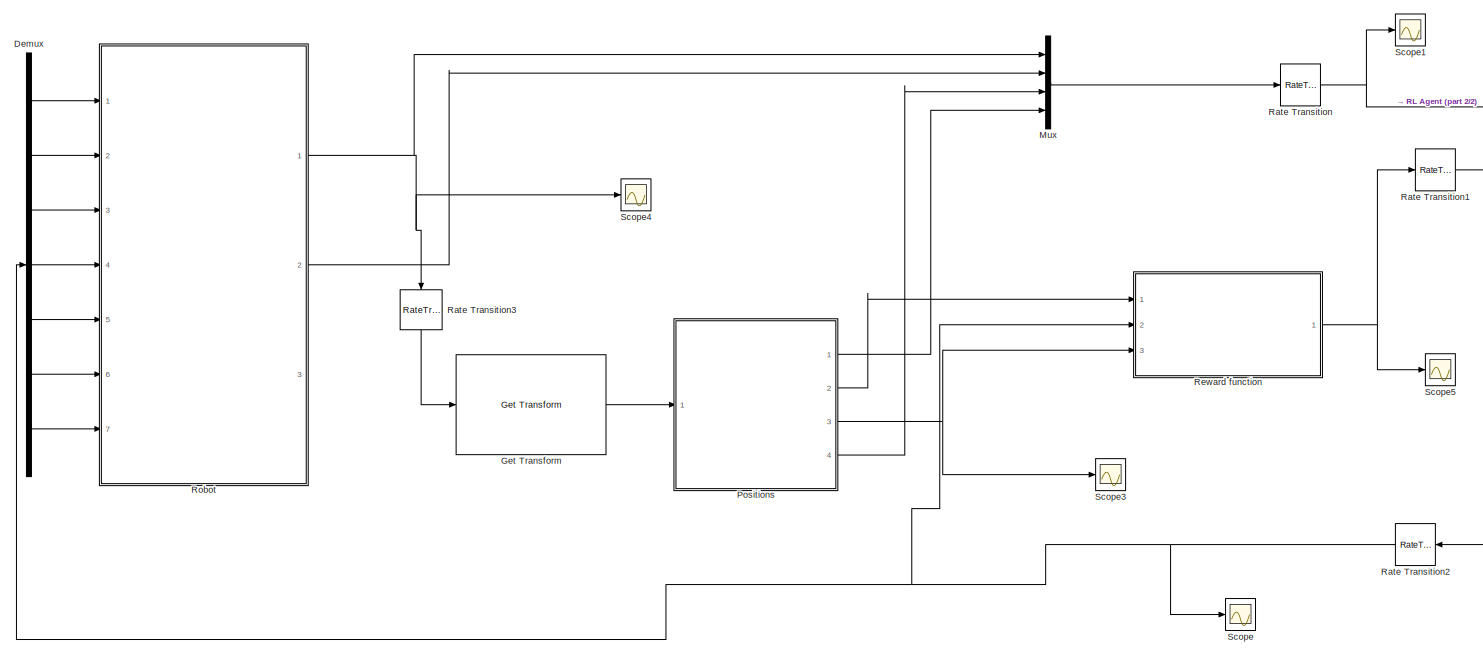
[diagram: root canvas - part 1/2, most of the canvas]
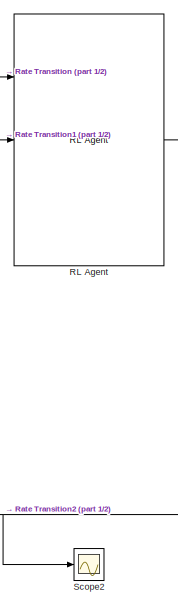
[diagram: root canvas - part 2/2, right side, full height]
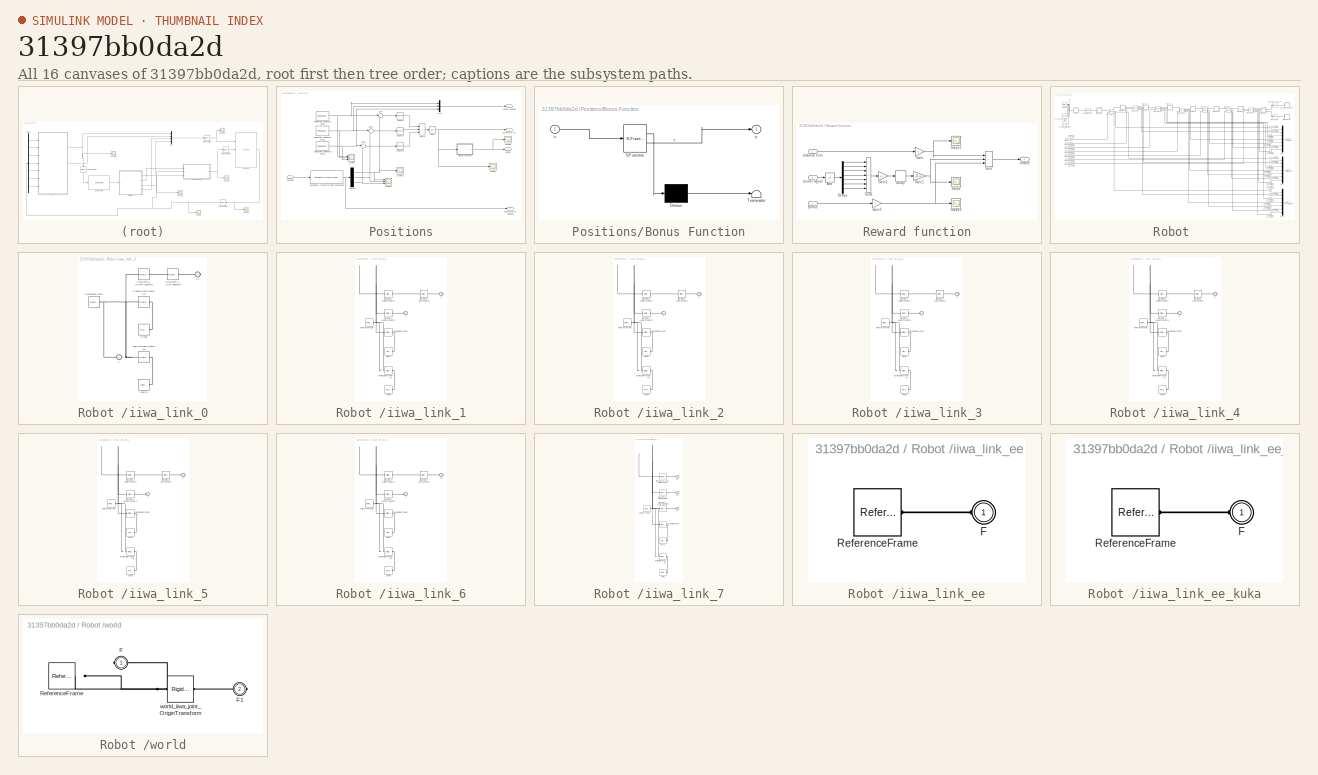
[diagram: thumbnail index - all 16 canvases of the model, root first then tree order]
MODEL slx_31397bb0da2d
KIND model
CONFIG AbsTol = auto
CONFIG EnableMultiTasking = off
CONFIG FixedStep = 1e-3
CONFIG MaxStep = auto
CONFIG MinStep = 1e-3
CONFIG RelTol = 1e-3
CONFIG SampleTimeConstraint = Unconstrained
CONFIG SolverName = VariableStepAuto
CONFIG StartTime = 0.0
CONFIG StopTime = 50
BLOCK [Demux] Demux
  Outputs = 7
  Ports = [1, 7]
BLOCK [Reference] Get Transform  REF=robotmaniplib/Get Transform
  Ports = [1, 1]
  SourceBlock = robotmaniplib/Get Transform
  SourceProductBaseCode = RO
  SourceType = Get Transform
BLOCK [Mux] Mux
  DisplayOption = bar
  Ports = [4, 1]
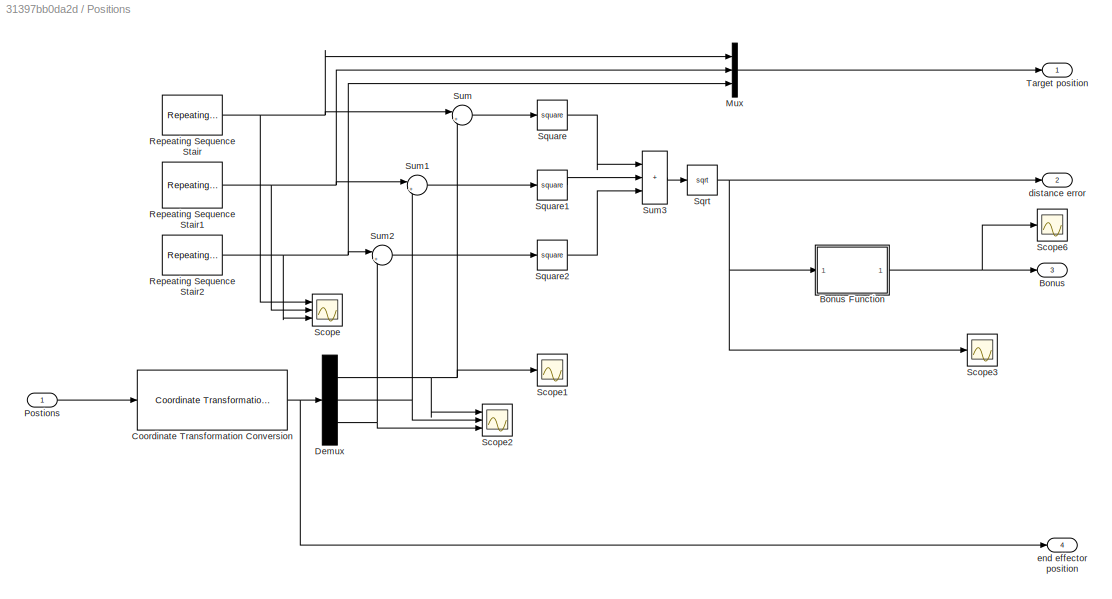
BLOCK [SubSystem] Positions
  Ports = [1, 4]
  RequestExecContextInheritance = off
BLOCK [Outport] Positions/Bonus
  Port = 3
BLOCK [SubSystem] Positions/Bonus Function
  ErrorFcn = Stateflow.Translate.translate
  PermitHierarchicalResolution = ExplicitOnly
  Ports = [1, 1]
  RequestExecContextInheritance = off
  SFBlockType = MATLAB Function
  TreatAsAtomicUnit = on
BLOCK [Demux] Positions/Bonus Function/ Demux 
  Outputs = 1
  Ports = [1, 1]
BLOCK [S-Function] Positions/Bonus Function/ SFunction 
  EnableBusSupport = on
  FunctionName = sf_sfun
  PortCounts = [1 2]
  Ports = [1, 2]
  SFcnIsStateOwnerBlock = off
  SFunctionDeploymentMode = off
  Tag = Stateflow S-Function 2
BLOCK [Terminator] Positions/Bonus Function/ Terminator 
BLOCK [Inport] Positions/Bonus Function/u
BLOCK [Outport] Positions/Bonus Function/y
BLOCK [Reference] Positions/Coordinate Transformation Conversion  REF=robotcorelib/Coordinate Transformation Conversion
  Ports = [1, 1]
  SourceBlock = robotcorelib/Coordinate Transformation Conversion
  SourceProductBaseCode = NV,RO,RR,UV
  SourceType = robotics.slcore.internal.block.CoordinateTransformationConversion
BLOCK [Demux] Positions/Demux
  Outputs = 3
  Ports = [1, 3]
BLOCK [Mux] Positions/Mux
  DisplayOption = bar
  Inputs = 3
  Ports = [3, 1]
BLOCK [Inport] Positions/Postions
BLOCK [Reference] Positions/Repeating Sequence Stair  REF=simulink/Sources/Repeating
Sequence
Stair
  Ports = [0, 1]
  SourceBlock = simulink/Sources/Repeating\nSequence\nStair
  SourceProductBaseCode = SL
  SourceType = Repeating Sequence Stair
BLOCK [Reference] Positions/Repeating Sequence Stair1  REF=simulink/Sources/Repeating
Sequence
Stair
  Ports = [0, 1]
  SourceBlock = simulink/Sources/Repeating\nSequence\nStair
  SourceProductBaseCode = SL
  SourceType = Repeating Sequence Stair
BLOCK [Reference] Positions/Repeating Sequence Stair2  REF=simulink/Sources/Repeating
Sequence
Stair
  Ports = [0, 1]
  SourceBlock = simulink/Sources/Repeating\nSequence\nStair
  SourceProductBaseCode = SL
  SourceType = Repeating Sequence Stair
BLOCK [Scope] Positions/Scope
  Floating = off
  NumInputPorts = 3
  Ports = [3]
  ScopeSpecificationString = Simulink.scopes.TimeScopeBlockCfg('CurrentConfiguration', extmgr.ConfigurationSet(extmgr.Configuration('Core','General UI',true),extmgr.Configuration('Core','Source UI',true),extmgr.Configuration('Sources','WiredSimulink',true,'DataLoggingVariableName','ScopeData8'),extmgr.Configuration('Visuals','Time Domain',true,'SerializedDisplays',{struct('MinYLimReal','-1.20969','MaxYLimReal','1.42979','YLab...<+1602ch>
BLOCK [Scope] Positions/Scope1
  Floating = off
  NumInputPorts = 1
  Ports = [1]
  ScopeSpecificationString = Simulink.scopes.TimeScopeBlockCfg('CurrentConfiguration', extmgr.ConfigurationSet(extmgr.Configuration('Core','General UI',true),extmgr.Configuration('Core','Source UI',true),extmgr.Configuration('Sources','WiredSimulink',true,'DataLoggingVariableName','ScopeData5'),extmgr.Configuration('Visuals','Time Domain',true,'SerializedDisplays',{struct('MinYLimReal','-0.13897','MaxYLimReal','0.61525','YLab...<+1364ch>
BLOCK [Scope] Positions/Scope2
  Floating = off
  NumInputPorts = 3
  Ports = [3]
  ScopeSpecificationString = Simulink.scopes.TimeScopeBlockCfg('CurrentConfiguration', extmgr.ConfigurationSet(extmgr.Configuration('Core','General UI',true),extmgr.Configuration('Core','Source UI',true),extmgr.Configuration('Sources','WiredSimulink',true,'DataLoggingVariableName','ScopeData9'),extmgr.Configuration('Visuals','Time Domain',true,'SerializedDisplays',{struct('MinYLimReal','-0.26658','MaxYLimReal','1.48073','YLab...<+1550ch>
BLOCK [Scope] Positions/Scope3
  Floating = off
  NumInputPorts = 1
  Ports = [1]
  ScopeSpecificationString = Simulink.scopes.TimeScopeBlockCfg('CurrentConfiguration', extmgr.ConfigurationSet(extmgr.Configuration('Core','General UI',true),extmgr.Configuration('Core','Source UI',true),extmgr.Configuration('Sources','WiredSimulink',true,'DataLoggingVariableName','ScopeData10'),extmgr.Configuration('Visuals','Time Domain',true,'SerializedDisplays',{struct('MinYLimReal','-0.00001','MaxYLimReal','0.03534','YLa...<+1462ch>
BLOCK [Scope] Positions/Scope6
  Floating = off
  NumInputPorts = 1
  Ports = [1]
  ScopeSpecificationString = Simulink.scopes.TimeScopeBlockCfg('CurrentConfiguration', extmgr.ConfigurationSet(extmgr.Configuration('Core','General UI',true),extmgr.Configuration('Core','Source UI',true),extmgr.Configuration('Sources','WiredSimulink',true,'DataLoggingVariableName','ScopeData3'),extmgr.Configuration('Visuals','Time Domain',true,'SerializedDisplays',{struct('MinYLimReal','-1.125','MaxYLimReal','10.125','YLabelR...<+1417ch>
BLOCK [Sqrt] Positions/Sqrt
BLOCK [Math] Positions/Square
  Operator = square
  Ports = [1, 1]
BLOCK [Math] Positions/Square1
  Operator = square
  Ports = [1, 1]
BLOCK [Math] Positions/Square2
  Operator = square
  Ports = [1, 1]
BLOCK [Sum] Positions/Sum
  Inputs = |+-
  Ports = [2, 1]
BLOCK [Sum] Positions/Sum1
  Inputs = |+-
  Ports = [2, 1]
BLOCK [Sum] Positions/Sum2
  Inputs = |+-
  Ports = [2, 1]
BLOCK [Sum] Positions/Sum3
  IconShape = rectangular
  Inputs = |+++
  Ports = [3, 1]
BLOCK [Outport] Positions/Target position
BLOCK [Outport] Positions/distance error 
  Port = 2
BLOCK [Outport] Positions/end effector position
  Port = 4
BLOCK [Reference] RL Agent  REF=rllib/RL Agent
  Ports = [3, 1]
  SourceBlock = rllib/RL Agent
  SourceProductBaseCode = RL
  SourceType = RL Agent
BLOCK [RateTransition] Rate Transition
  OutPortSampleTime = 1/40
BLOCK [RateTransition] Rate Transition1
  OutPortSampleTime = 1/40
BLOCK [RateTransition] Rate Transition2
  NameLocation = top
  OutPortSampleTime = 1/40
BLOCK [RateTransition] Rate Transition3
  NameLocation = left
  OutPortSampleTime = 1/40
BLOCK [SubSystem] Reward function
  Ports = [3, 1]
  RequestExecContextInheritance = off
BLOCK [Abs] Reward function/Abs
  SaturateOnIntegerOverflow = off
BLOCK [Inport] Reward function/Bonus
  NameLocation = top
  Port = 3
BLOCK [Delay] Reward function/Delay
  DelayLength = 1
  InputPortMap = u0
  Ports = [1, 1]
BLOCK [Demux] Reward function/Demux
  Outputs = 7
  Ports = [1, 7]
BLOCK [Gain] Reward function/Gain
  Gain = -1
BLOCK [Gain] Reward function/Gain1
  Gain = -0.1
BLOCK [Gain] Reward function/Gain2
  Gain = 1/7
BLOCK [Gain] Reward function/Gain3
BLOCK [Scope] Reward function/Scope
  Floating = off
  NumInputPorts = 1
  Ports = [1]
  ScopeSpecificationString = Simulink.scopes.TimeScopeBlockCfg('CurrentConfiguration', extmgr.ConfigurationSet(extmgr.Configuration('Core','General UI',true),extmgr.Configuration('Core','Source UI',true),extmgr.Configuration('Sources','WiredSimulink',true,'DataLoggingVariableName','ScopeData4'),extmgr.Configuration('Visuals','Time Domain',true,'SerializedDisplays',{struct('MinYLimReal','-1.125','MaxYLimReal','0.125','YLabelRe...<+1379ch>
BLOCK [Scope] Reward function/Scope1
  Floating = off
  NumInputPorts = 1
  Ports = [1]
  ScopeSpecificationString = Simulink.scopes.TimeScopeBlockCfg('CurrentConfiguration', extmgr.ConfigurationSet(extmgr.Configuration('Core','General UI',true),extmgr.Configuration('Core','Source UI',true),extmgr.Configuration('Sources','WiredSimulink',true,'DataLoggingVariableName','ScopeData6'),extmgr.Configuration('Visuals','Time Domain',true,'SerializedDisplays',{struct('MinYLimReal','-1.17276','MaxYLimReal','0.01518','YLab...<+1391ch>
BLOCK [Scope] Reward function/Scope2
  Floating = off
  NumInputPorts = 1
  Ports = [1]
  ScopeSpecificationString = Simulink.scopes.TimeScopeBlockCfg('CurrentConfiguration', extmgr.ConfigurationSet(extmgr.Configuration('Core','General UI',true),extmgr.Configuration('Core','Source UI',true),extmgr.Configuration('Sources','WiredSimulink',true,'DataLoggingVariableName','ScopeData7'),extmgr.Configuration('Visuals','Time Domain',true,'SerializedDisplays',{struct('MinYLimReal','-1.00000','MaxYLimReal','1.00000','YLab...<+1389ch>
BLOCK [Sum] Reward function/Sum
  IconShape = rectangular
  Inputs = |+++
  Ports = [3, 1]
BLOCK [Sum] Reward function/Sum1
  IconShape = rectangular
  Inputs = |+++++++
  Ports = [7, 1]
BLOCK [Inport] Reward function/control signal
  NameLocation = top
  Port = 2
BLOCK [Inport] Reward function/distance error
BLOCK [Outport] Reward function/reward
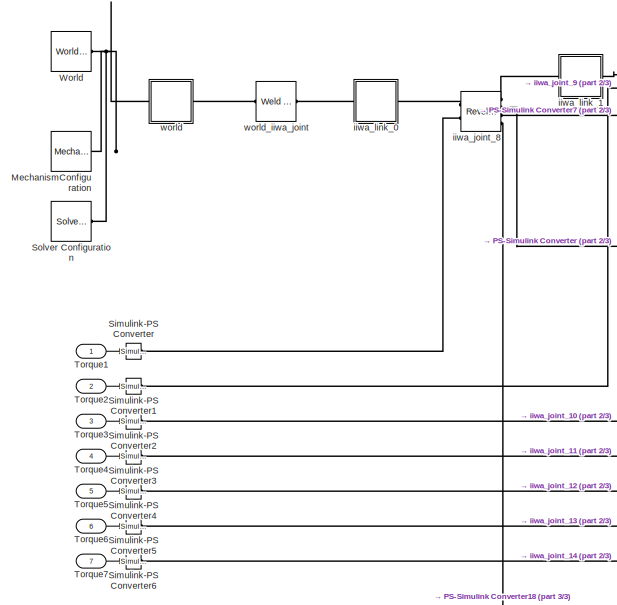
[diagram: Robot  - part 1/3, top left region]
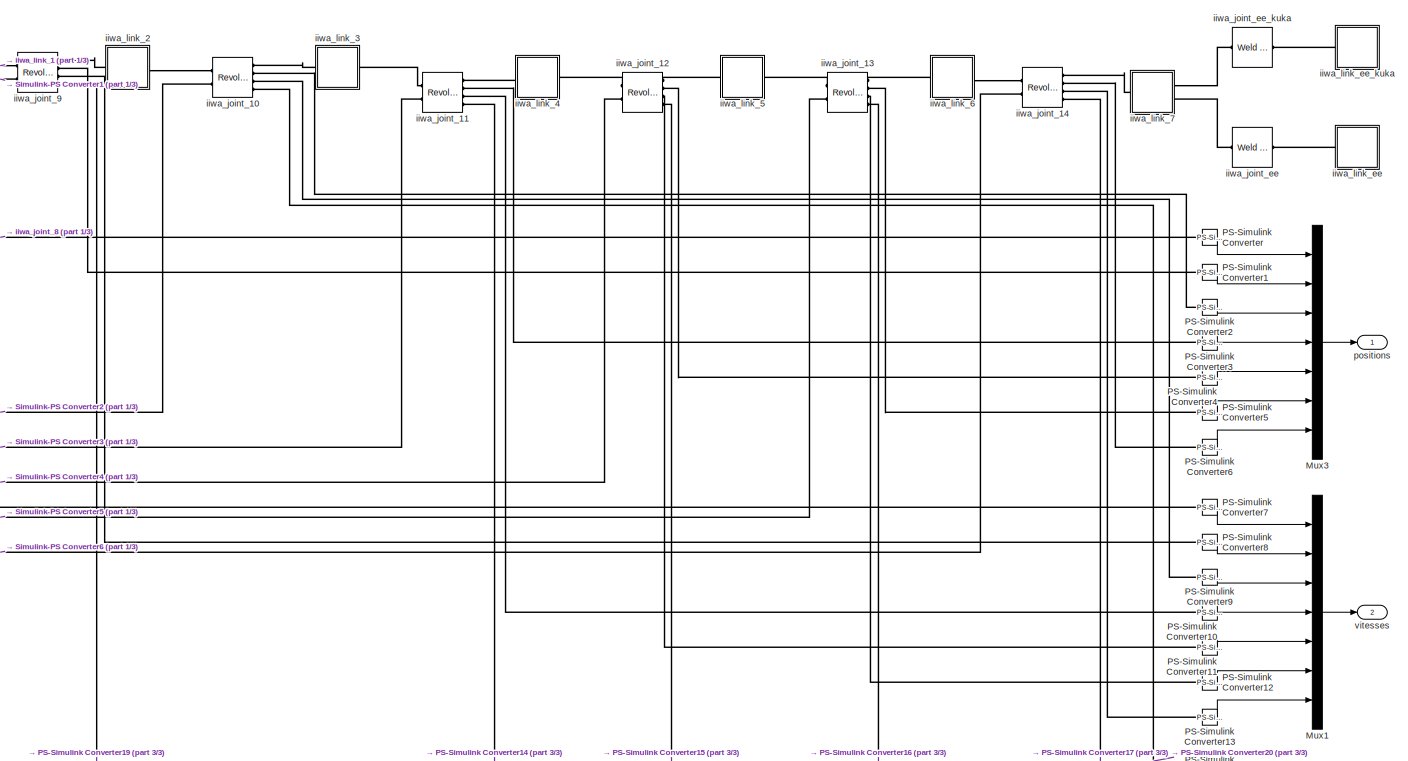
[diagram: Robot  - part 2/3, central region]
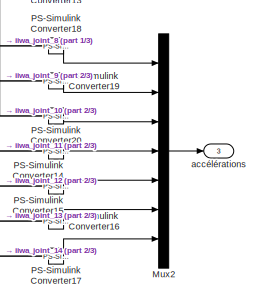
[diagram: Robot  - part 3/3, bottom right region]
BLOCK [SubSystem] Robot 
  Ports = [7, 3]
  RequestExecContextInheritance = off
BLOCK [Reference] Robot /MechanismConfiguration  REF=sm_lib/Utilities/Mechanism
Configuration
  Ports = [0, 0, 0, 0, 0, 0, 1]
  SourceBlock = sm_lib/Utilities/Mechanism\nConfiguration
  SourceProductBaseCode = MS
  SourceType = Mechanism\nConfiguration
BLOCK [Mux] Robot /Mux1
  DisplayOption = bar
  Inputs = 7
  Ports = [7, 1]
BLOCK [Mux] Robot /Mux2
  DisplayOption = bar
  Inputs = 7
  Ports = [7, 1]
BLOCK [Mux] Robot /Mux3
  DisplayOption = bar
  Inputs = 7
  Ports = [7, 1]
BLOCK [Reference] Robot /PS-Simulink Converter  REF=nesl_utility/PS-Simulink
Converter
  Ports = [0, 1, 0, 0, 0, 1]
  SourceBlock = nesl_utility/PS-Simulink\nConverter
  SourceProductBaseCode = PW,SS
  SourceType = PS-Simulink\nConverter
BLOCK [Reference] Robot /PS-Simulink Converter1  REF=nesl_utility/PS-Simulink
Converter
  Ports = [0, 1, 0, 0, 0, 1]
  SourceBlock = nesl_utility/PS-Simulink\nConverter
  SourceProductBaseCode = PW,SS
  SourceType = PS-Simulink\nConverter
BLOCK [Reference] Robot /PS-Simulink Converter10  REF=nesl_utility/PS-Simulink
Converter
  Ports = [0, 1, 0, 0, 0, 1]
  SourceBlock = nesl_utility/PS-Simulink\nConverter
  SourceProductBaseCode = PW,SS
  SourceType = PS-Simulink\nConverter
BLOCK [Reference] Robot /PS-Simulink Converter11  REF=nesl_utility/PS-Simulink
Converter
  Ports = [0, 1, 0, 0, 0, 1]
  SourceBlock = nesl_utility/PS-Simulink\nConverter
  SourceProductBaseCode = PW,SS
  SourceType = PS-Simulink\nConverter
BLOCK [Reference] Robot /PS-Simulink Converter12  REF=nesl_utility/PS-Simulink
Converter
  Ports = [0, 1, 0, 0, 0, 1]
  SourceBlock = nesl_utility/PS-Simulink\nConverter
  SourceProductBaseCode = PW,SS
  SourceType = PS-Simulink\nConverter
BLOCK [Reference] Robot /PS-Simulink Converter13  REF=nesl_utility/PS-Simulink
Converter
  Ports = [0, 1, 0, 0, 0, 1]
  SourceBlock = nesl_utility/PS-Simulink\nConverter
  SourceProductBaseCode = PW,SS
  SourceType = PS-Simulink\nConverter
BLOCK [Reference] Robot /PS-Simulink Converter14  REF=nesl_utility/PS-Simulink
Converter
  Ports = [0, 1, 0, 0, 0, 1]
  SourceBlock = nesl_utility/PS-Simulink\nConverter
  SourceProductBaseCode = PW,SS
  SourceType = PS-Simulink\nConverter
BLOCK [Reference] Robot /PS-Simulink Converter15  REF=nesl_utility/PS-Simulink
Converter
  Ports = [0, 1, 0, 0, 0, 1]
  SourceBlock = nesl_utility/PS-Simulink\nConverter
  SourceProductBaseCode = PW,SS
  SourceType = PS-Simulink\nConverter
BLOCK [Reference] Robot /PS-Simulink Converter16  REF=nesl_utility/PS-Simulink
Converter
  Ports = [0, 1, 0, 0, 0, 1]
  SourceBlock = nesl_utility/PS-Simulink\nConverter
  SourceProductBaseCode = PW,SS
  SourceType = PS-Simulink\nConverter
BLOCK [Reference] Robot /PS-Simulink Converter17  REF=nesl_utility/PS-Simulink
Converter
  Ports = [0, 1, 0, 0, 0, 1]
  SourceBlock = nesl_utility/PS-Simulink\nConverter
  SourceProductBaseCode = PW,SS
  SourceType = PS-Simulink\nConverter
BLOCK [Reference] Robot /PS-Simulink Converter18  REF=nesl_utility/PS-Simulink
Converter
  Ports = [0, 1, 0, 0, 0, 1]
  SourceBlock = nesl_utility/PS-Simulink\nConverter
  SourceProductBaseCode = PW,SS
  SourceType = PS-Simulink\nConverter
BLOCK [Reference] Robot /PS-Simulink Converter19  REF=nesl_utility/PS-Simulink
Converter
  Ports = [0, 1, 0, 0, 0, 1]
  SourceBlock = nesl_utility/PS-Simulink\nConverter
  SourceProductBaseCode = PW,SS
  SourceType = PS-Simulink\nConverter
BLOCK [Reference] Robot /PS-Simulink Converter2  REF=nesl_utility/PS-Simulink
Converter
  Ports = [0, 1, 0, 0, 0, 1]
  SourceBlock = nesl_utility/PS-Simulink\nConverter
  SourceProductBaseCode = PW,SS
  SourceType = PS-Simulink\nConverter
BLOCK [Reference] Robot /PS-Simulink Converter20  REF=nesl_utility/PS-Simulink
Converter
  Ports = [0, 1, 0, 0, 0, 1]
  SourceBlock = nesl_utility/PS-Simulink\nConverter
  SourceProductBaseCode = PW,SS
  SourceType = PS-Simulink\nConverter
BLOCK [Reference] Robot /PS-Simulink Converter3  REF=nesl_utility/PS-Simulink
Converter
  Ports = [0, 1, 0, 0, 0, 1]
  SourceBlock = nesl_utility/PS-Simulink\nConverter
  SourceProductBaseCode = PW,SS
  SourceType = PS-Simulink\nConverter
BLOCK [Reference] Robot /PS-Simulink Converter4  REF=nesl_utility/PS-Simulink
Converter
  Ports = [0, 1, 0, 0, 0, 1]
  SourceBlock = nesl_utility/PS-Simulink\nConverter
  SourceProductBaseCode = PW,SS
  SourceType = PS-Simulink\nConverter
BLOCK [Reference] Robot /PS-Simulink Converter5  REF=nesl_utility/PS-Simulink
Converter
  Ports = [0, 1, 0, 0, 0, 1]
  SourceBlock = nesl_utility/PS-Simulink\nConverter
  SourceProductBaseCode = PW,SS
  SourceType = PS-Simulink\nConverter
BLOCK [Reference] Robot /PS-Simulink Converter6  REF=nesl_utility/PS-Simulink
Converter
  Ports = [0, 1, 0, 0, 0, 1]
  SourceBlock = nesl_utility/PS-Simulink\nConverter
  SourceProductBaseCode = PW,SS
  SourceType = PS-Simulink\nConverter
BLOCK [Reference] Robot /PS-Simulink Converter7  REF=nesl_utility/PS-Simulink
Converter
  Ports = [0, 1, 0, 0, 0, 1]
  SourceBlock = nesl_utility/PS-Simulink\nConverter
  SourceProductBaseCode = PW,SS
  SourceType = PS-Simulink\nConverter
BLOCK [Reference] Robot /PS-Simulink Converter8  REF=nesl_utility/PS-Simulink
Converter
  Ports = [0, 1, 0, 0, 0, 1]
  SourceBlock = nesl_utility/PS-Simulink\nConverter
  SourceProductBaseCode = PW,SS
  SourceType = PS-Simulink\nConverter
BLOCK [Reference] Robot /PS-Simulink Converter9  REF=nesl_utility/PS-Simulink
Converter
  Ports = [0, 1, 0, 0, 0, 1]
  SourceBlock = nesl_utility/PS-Simulink\nConverter
  SourceProductBaseCode = PW,SS
  SourceType = PS-Simulink\nConverter
BLOCK [Reference] Robot /Simulink-PS Converter  REF=nesl_utility/Simulink-PS
Converter
  Ports = [1, 0, 0, 0, 0, 0, 1]
  SourceBlock = nesl_utility/Simulink-PS\nConverter
  SourceProductBaseCode = PW,SS
  SourceType = Simulink-PS\nConverter
BLOCK [Reference] Robot /Simulink-PS Converter1  REF=nesl_utility/Simulink-PS
Converter
  Ports = [1, 0, 0, 0, 0, 0, 1]
  SourceBlock = nesl_utility/Simulink-PS\nConverter
  SourceProductBaseCode = PW,SS
  SourceType = Simulink-PS\nConverter
BLOCK [Reference] Robot /Simulink-PS Converter2  REF=nesl_utility/Simulink-PS
Converter
  Ports = [1, 0, 0, 0, 0, 0, 1]
  SourceBlock = nesl_utility/Simulink-PS\nConverter
  SourceProductBaseCode = PW,SS
  SourceType = Simulink-PS\nConverter
BLOCK [Reference] Robot /Simulink-PS Converter3  REF=nesl_utility/Simulink-PS
Converter
  Ports = [1, 0, 0, 0, 0, 0, 1]
  SourceBlock = nesl_utility/Simulink-PS\nConverter
  SourceProductBaseCode = PW,SS
  SourceType = Simulink-PS\nConverter
BLOCK [Reference] Robot /Simulink-PS Converter4  REF=nesl_utility/Simulink-PS
Converter
  Ports = [1, 0, 0, 0, 0, 0, 1]
  SourceBlock = nesl_utility/Simulink-PS\nConverter
  SourceProductBaseCode = PW,SS
  SourceType = Simulink-PS\nConverter
BLOCK [Reference] Robot /Simulink-PS Converter5  REF=nesl_utility/Simulink-PS
Converter
  Ports = [1, 0, 0, 0, 0, 0, 1]
  SourceBlock = nesl_utility/Simulink-PS\nConverter
  SourceProductBaseCode = PW,SS
  SourceType = Simulink-PS\nConverter
BLOCK [Reference] Robot /Simulink-PS Converter6  REF=nesl_utility/Simulink-PS
Converter
  Ports = [1, 0, 0, 0, 0, 0, 1]
  SourceBlock = nesl_utility/Simulink-PS\nConverter
  SourceProductBaseCode = PW,SS
  SourceType = Simulink-PS\nConverter
BLOCK [Reference] Robot /Solver Configuration  REF=nesl_utility/Solver
Configuration
  Ports = [0, 0, 0, 0, 0, 0, 1]
  SourceBlock = nesl_utility/Solver\nConfiguration
  SourceProductBaseCode = PW,SS
  SourceType = Solver\nConfiguration
BLOCK [Inport] Robot /Torque1
BLOCK [Inport] Robot /Torque2
  Port = 2
BLOCK [Inport] Robot /Torque3
  Port = 3
BLOCK [Inport] Robot /Torque4
  Port = 4
BLOCK [Inport] Robot /Torque5
  Port = 5
BLOCK [Inport] Robot /Torque6
  Port = 6
BLOCK [Inport] Robot /Torque7
  Port = 7
BLOCK [Reference] Robot /World  REF=sm_lib/Frames and
Transforms/World Frame
  Ports = [0, 0, 0, 0, 0, 0, 1]
  SourceBlock = sm_lib/Frames and\nTransforms/World Frame
  SourceProductBaseCode = MS
  SourceType = World Frame
BLOCK [Outport] Robot /accélérations 
  Port = 3
  VectorParamsAs1DForOutWhenUnconnected = off
BLOCK [Reference] Robot /iiwa_joint_10  REF=sm_lib/Joints/Revolute Joint
  Ports = [0, 0, 0, 0, 0, 2, 4]
  SourceBlock = sm_lib/Joints/Revolute Joint
  SourceProductBaseCode = MS
  SourceType = Revolute Joint
BLOCK [Reference] Robot /iiwa_joint_11  REF=sm_lib/Joints/Revolute Joint
  Ports = [0, 0, 0, 0, 0, 2, 4]
  SourceBlock = sm_lib/Joints/Revolute Joint
  SourceProductBaseCode = MS
  SourceType = Revolute Joint
BLOCK [Reference] Robot /iiwa_joint_12  REF=sm_lib/Joints/Revolute Joint
  Ports = [0, 0, 0, 0, 0, 2, 4]
  SourceBlock = sm_lib/Joints/Revolute Joint
  SourceProductBaseCode = MS
  SourceType = Revolute Joint
BLOCK [Reference] Robot /iiwa_joint_13  REF=sm_lib/Joints/Revolute Joint
  Ports = [0, 0, 0, 0, 0, 2, 4]
  SourceBlock = sm_lib/Joints/Revolute Joint
  SourceProductBaseCode = MS
  SourceType = Revolute Joint
BLOCK [Reference] Robot /iiwa_joint_14  REF=sm_lib/Joints/Revolute Joint
  Ports = [0, 0, 0, 0, 0, 2, 4]
  SourceBlock = sm_lib/Joints/Revolute Joint
  SourceProductBaseCode = MS
  SourceType = Revolute Joint
BLOCK [Reference] Robot /iiwa_joint_8  REF=sm_lib/Joints/Revolute Joint
  Ports = [0, 0, 0, 0, 0, 2, 4]
  SourceBlock = sm_lib/Joints/Revolute Joint
  SourceProductBaseCode = MS
  SourceType = Revolute Joint
BLOCK [Reference] Robot /iiwa_joint_9  REF=sm_lib/Joints/Revolute Joint
  Ports = [0, 0, 0, 0, 0, 2, 4]
  SourceBlock = sm_lib/Joints/Revolute Joint
  SourceProductBaseCode = MS
  SourceType = Revolute Joint
BLOCK [Reference] Robot /iiwa_joint_ee  REF=sm_lib/Joints/Weld Joint
  Ports = [0, 0, 0, 0, 0, 1, 1]
  SourceBlock = sm_lib/Joints/Weld Joint
  SourceProductBaseCode = MS
  SourceType = Weld Joint
BLOCK [Reference] Robot /iiwa_joint_ee_kuka  REF=sm_lib/Joints/Weld Joint
  Ports = [0, 0, 0, 0, 0, 1, 1]
  SourceBlock = sm_lib/Joints/Weld Joint
  SourceProductBaseCode = MS
  SourceType = Weld Joint
BLOCK [SubSystem] Robot /iiwa_link_0
  Ports = [0, 0, 0, 0, 0, 1, 1]
  RequestExecContextInheritance = off
BLOCK [PMIOPort] Robot /iiwa_link_0/F
  Side = Left
BLOCK [PMIOPort] Robot /iiwa_link_0/F1
  Port = 2
  Side = Right
BLOCK [Reference] Robot /iiwa_link_0/Inertia  REF=sm_lib/Body Elements/Inertia
  Ports = [0, 0, 0, 0, 0, 0, 1]
  SourceBlock = sm_lib/Body Elements/Inertia
  SourceProductBaseCode = MS
  SourceType = Inertia
BLOCK [Reference] Robot /iiwa_link_0/InertiaOriginTransform  REF=sm_lib/Frames and
Transforms/Rigid
Transform
  Ports = [0, 0, 0, 0, 0, 1, 1]
  SourceBlock = sm_lib/Frames and\nTransforms/Rigid\nTransform
  SourceProductBaseCode = MS
  SourceType = Rigid\nTransform
BLOCK [Reference] Robot /iiwa_link_0/ReferenceFrame  REF=sm_lib/Frames and
Transforms/Reference
Frame
  Ports = [0, 0, 0, 0, 0, 0, 1]
  SourceBlock = sm_lib/Frames and\nTransforms/Reference\nFrame
  SourceProductBaseCode = MS
  SourceType = Reference\nFrame
BLOCK [Reference] Robot /iiwa_link_0/Visual  REF=sm_lib/Body Elements/File Solid
  Ports = [0, 0, 0, 0, 0, 0, 1]
  SourceBlock = sm_lib/Body Elements/File Solid
  SourceProductBaseCode = MS
  SourceType = File Solid
BLOCK [Reference] Robot /iiwa_link_0/VisualOriginTransform  REF=sm_lib/Frames and
Transforms/Rigid
Transform
  Ports = [0, 0, 0, 0, 0, 1, 1]
  SourceBlock = sm_lib/Frames and\nTransforms/Rigid\nTransform
  SourceProductBaseCode = MS
  SourceType = Rigid\nTransform
BLOCK [Reference] Robot /iiwa_link_0/iiwa_joint_1_AxisTransform  REF=sm_lib/Frames and
Transforms/Rigid
Transform
  Ports = [0, 0, 0, 0, 0, 1, 1]
  SourceBlock = sm_lib/Frames and\nTransforms/Rigid\nTransform
  SourceProductBaseCode = MS
  SourceType = Rigid\nTransform
BLOCK [Reference] Robot /iiwa_link_0/iiwa_joint_1_OriginTransform  REF=sm_lib/Frames and
Transforms/Rigid
Transform
  Ports = [0, 0, 0, 0, 0, 1, 1]
  SourceBlock = sm_lib/Frames and\nTransforms/Rigid\nTransform
  SourceProductBaseCode = MS
  SourceType = Rigid\nTransform
BLOCK [SubSystem] Robot /iiwa_link_1
  Ports = [0, 0, 0, 0, 0, 1, 1]
  RequestExecContextInheritance = off
BLOCK [PMIOPort] Robot /iiwa_link_1/F
  Side = Left
BLOCK [PMIOPort] Robot /iiwa_link_1/F1
  Port = 2
  Side = Right
BLOCK [Reference] Robot /iiwa_link_1/Inertia  REF=sm_lib/Body Elements/Inertia
  Ports = [0, 0, 0, 0, 0, 0, 1]
  SourceBlock = sm_lib/Body Elements/Inertia
  SourceProductBaseCode = MS
  SourceType = Inertia
BLOCK [Reference] Robot /iiwa_link_1/InertiaOriginTransform  REF=sm_lib/Frames and
Transforms/Rigid
Transform
  Ports = [0, 0, 0, 0, 0, 1, 1]
  SourceBlock = sm_lib/Frames and\nTransforms/Rigid\nTransform
  SourceProductBaseCode = MS
  SourceType = Rigid\nTransform
BLOCK [Reference] Robot /iiwa_link_1/ReferenceFrame  REF=sm_lib/Frames and
Transforms/Reference
Frame
  Ports = [0, 0, 0, 0, 0, 0, 1]
  SourceBlock = sm_lib/Frames and\nTransforms/Reference\nFrame
  SourceProductBaseCode = MS
  SourceType = Reference\nFrame
BLOCK [Reference] Robot /iiwa_link_1/Visual  REF=sm_lib/Body Elements/File Solid
  Ports = [0, 0, 0, 0, 0, 0, 1]
  SourceBlock = sm_lib/Body Elements/File Solid
  SourceProductBaseCode = MS
  SourceType = File Solid
BLOCK [Reference] Robot /iiwa_link_1/VisualOriginTransform  REF=sm_lib/Frames and
Transforms/Rigid
Transform
  Ports = [0, 0, 0, 0, 0, 1, 1]
  SourceBlock = sm_lib/Frames and\nTransforms/Rigid\nTransform
  SourceProductBaseCode = MS
  SourceType = Rigid\nTransform
BLOCK [Reference] Robot /iiwa_link_1/iiwa_joint_1_AxisInvTransform  REF=sm_lib/Frames and
Transforms/Rigid
Transform
  Ports = [0, 0, 0, 0, 0, 1, 1]
  SourceBlock = sm_lib/Frames and\nTransforms/Rigid\nTransform
  SourceProductBaseCode = MS
  SourceType = Rigid\nTransform
BLOCK [Reference] Robot /iiwa_link_1/iiwa_joint_2_AxisTransform  REF=sm_lib/Frames and
Transforms/Rigid
Transform
  Ports = [0, 0, 0, 0, 0, 1, 1]
  SourceBlock = sm_lib/Frames and\nTransforms/Rigid\nTransform
  SourceProductBaseCode = MS
  SourceType = Rigid\nTransform
BLOCK [Reference] Robot /iiwa_link_1/iiwa_joint_2_OriginTransform  REF=sm_lib/Frames and
Transforms/Rigid
Transform
  Ports = [0, 0, 0, 0, 0, 1, 1]
  SourceBlock = sm_lib/Frames and\nTransforms/Rigid\nTransform
  SourceProductBaseCode = MS
  SourceType = Rigid\nTransform
BLOCK [SubSystem] Robot /iiwa_link_2
  Ports = [0, 0, 0, 0, 0, 1, 1]
  RequestExecContextInheritance = off
BLOCK [PMIOPort] Robot /iiwa_link_2/F
  Side = Left
BLOCK [PMIOPort] Robot /iiwa_link_2/F1
  Port = 2
  Side = Right
BLOCK [Reference] Robot /iiwa_link_2/Inertia  REF=sm_lib/Body Elements/Inertia
  Ports = [0, 0, 0, 0, 0, 0, 1]
  SourceBlock = sm_lib/Body Elements/Inertia
  SourceProductBaseCode = MS
  SourceType = Inertia
BLOCK [Reference] Robot /iiwa_link_2/InertiaOriginTransform  REF=sm_lib/Frames and
Transforms/Rigid
Transform
  Ports = [0, 0, 0, 0, 0, 1, 1]
  SourceBlock = sm_lib/Frames and\nTransforms/Rigid\nTransform
  SourceProductBaseCode = MS
  SourceType = Rigid\nTransform
BLOCK [Reference] Robot /iiwa_link_2/ReferenceFrame  REF=sm_lib/Frames and
Transforms/Reference
Frame
  Ports = [0, 0, 0, 0, 0, 0, 1]
  SourceBlock = sm_lib/Frames and\nTransforms/Reference\nFrame
  SourceProductBaseCode = MS
  SourceType = Reference\nFrame
BLOCK [Reference] Robot /iiwa_link_2/Visual  REF=sm_lib/Body Elements/File Solid
  Ports = [0, 0, 0, 0, 0, 0, 1]
  SourceBlock = sm_lib/Body Elements/File Solid
  SourceProductBaseCode = MS
  SourceType = File Solid
BLOCK [Reference] Robot /iiwa_link_2/VisualOriginTransform  REF=sm_lib/Frames and
Transforms/Rigid
Transform
  Ports = [0, 0, 0, 0, 0, 1, 1]
  SourceBlock = sm_lib/Frames and\nTransforms/Rigid\nTransform
  SourceProductBaseCode = MS
  SourceType = Rigid\nTransform
BLOCK [Reference] Robot /iiwa_link_2/iiwa_joint_2_AxisInvTransform  REF=sm_lib/Frames and
Transforms/Rigid
Transform
  Ports = [0, 0, 0, 0, 0, 1, 1]
  SourceBlock = sm_lib/Frames and\nTransforms/Rigid\nTransform
  SourceProductBaseCode = MS
  SourceType = Rigid\nTransform
BLOCK [Reference] Robot /iiwa_link_2/iiwa_joint_3_AxisTransform  REF=sm_lib/Frames and
Transforms/Rigid
Transform
  Ports = [0, 0, 0, 0, 0, 1, 1]
  SourceBlock = sm_lib/Frames and\nTransforms/Rigid\nTransform
  SourceProductBaseCode = MS
  SourceType = Rigid\nTransform
BLOCK [Reference] Robot /iiwa_link_2/iiwa_joint_3_OriginTransform  REF=sm_lib/Frames and
Transforms/Rigid
Transform
  Ports = [0, 0, 0, 0, 0, 1, 1]
  SourceBlock = sm_lib/Frames and\nTransforms/Rigid\nTransform
  SourceProductBaseCode = MS
  SourceType = Rigid\nTransform
BLOCK [SubSystem] Robot /iiwa_link_3
  Ports = [0, 0, 0, 0, 0, 1, 1]
  RequestExecContextInheritance = off
BLOCK [PMIOPort] Robot /iiwa_link_3/F
  Side = Left
BLOCK [PMIOPort] Robot /iiwa_link_3/F1
  Port = 2
  Side = Right
BLOCK [Reference] Robot /iiwa_link_3/Inertia  REF=sm_lib/Body Elements/Inertia
  Ports = [0, 0, 0, 0, 0, 0, 1]
  SourceBlock = sm_lib/Body Elements/Inertia
  SourceProductBaseCode = MS
  SourceType = Inertia
BLOCK [Reference] Robot /iiwa_link_3/InertiaOriginTransform  REF=sm_lib/Frames and
Transforms/Rigid
Transform
  Ports = [0, 0, 0, 0, 0, 1, 1]
  SourceBlock = sm_lib/Frames and\nTransforms/Rigid\nTransform
  SourceProductBaseCode = MS
  SourceType = Rigid\nTransform
BLOCK [Reference] Robot /iiwa_link_3/ReferenceFrame  REF=sm_lib/Frames and
Transforms/Reference
Frame
  Ports = [0, 0, 0, 0, 0, 0, 1]
  SourceBlock = sm_lib/Frames and\nTransforms/Reference\nFrame
  SourceProductBaseCode = MS
  SourceType = Reference\nFrame
BLOCK [Reference] Robot /iiwa_link_3/Visual  REF=sm_lib/Body Elements/File Solid
  Ports = [0, 0, 0, 0, 0, 0, 1]
  SourceBlock = sm_lib/Body Elements/File Solid
  SourceProductBaseCode = MS
  SourceType = File Solid
BLOCK [Reference] Robot /iiwa_link_3/VisualOriginTransform  REF=sm_lib/Frames and
Transforms/Rigid
Transform
  Ports = [0, 0, 0, 0, 0, 1, 1]
  SourceBlock = sm_lib/Frames and\nTransforms/Rigid\nTransform
  SourceProductBaseCode = MS
  SourceType = Rigid\nTransform
BLOCK [Reference] Robot /iiwa_link_3/iiwa_joint_3_AxisInvTransform  REF=sm_lib/Frames and
Transforms/Rigid
Transform
  Ports = [0, 0, 0, 0, 0, 1, 1]
  SourceBlock = sm_lib/Frames and\nTransforms/Rigid\nTransform
  SourceProductBaseCode = MS
  SourceType = Rigid\nTransform
BLOCK [Reference] Robot /iiwa_link_3/iiwa_joint_4_AxisTransform  REF=sm_lib/Frames and
Transforms/Rigid
Transform
  Ports = [0, 0, 0, 0, 0, 1, 1]
  SourceBlock = sm_lib/Frames and\nTransforms/Rigid\nTransform
  SourceProductBaseCode = MS
  SourceType = Rigid\nTransform
BLOCK [Reference] Robot /iiwa_link_3/iiwa_joint_4_OriginTransform  REF=sm_lib/Frames and
Transforms/Rigid
Transform
  Ports = [0, 0, 0, 0, 0, 1, 1]
  SourceBlock = sm_lib/Frames and\nTransforms/Rigid\nTransform
  SourceProductBaseCode = MS
  SourceType = Rigid\nTransform
BLOCK [SubSystem] Robot /iiwa_link_4
  Ports = [0, 0, 0, 0, 0, 1, 1]
  RequestExecContextInheritance = off
BLOCK [PMIOPort] Robot /iiwa_link_4/F
  Side = Left
BLOCK [PMIOPort] Robot /iiwa_link_4/F1
  Port = 2
  Side = Right
BLOCK [Reference] Robot /iiwa_link_4/Inertia  REF=sm_lib/Body Elements/Inertia
  Ports = [0, 0, 0, 0, 0, 0, 1]
  SourceBlock = sm_lib/Body Elements/Inertia
  SourceProductBaseCode = MS
  SourceType = Inertia
BLOCK [Reference] Robot /iiwa_link_4/InertiaOriginTransform  REF=sm_lib/Frames and
Transforms/Rigid
Transform
  Ports = [0, 0, 0, 0, 0, 1, 1]
  SourceBlock = sm_lib/Frames and\nTransforms/Rigid\nTransform
  SourceProductBaseCode = MS
  SourceType = Rigid\nTransform
BLOCK [Reference] Robot /iiwa_link_4/ReferenceFrame  REF=sm_lib/Frames and
Transforms/Reference
Frame
  Ports = [0, 0, 0, 0, 0, 0, 1]
  SourceBlock = sm_lib/Frames and\nTransforms/Reference\nFrame
  SourceProductBaseCode = MS
  SourceType = Reference\nFrame
BLOCK [Reference] Robot /iiwa_link_4/Visual  REF=sm_lib/Body Elements/File Solid
  Ports = [0, 0, 0, 0, 0, 0, 1]
  SourceBlock = sm_lib/Body Elements/File Solid
  SourceProductBaseCode = MS
  SourceType = File Solid
BLOCK [Reference] Robot /iiwa_link_4/VisualOriginTransform  REF=sm_lib/Frames and
Transforms/Rigid
Transform
  Ports = [0, 0, 0, 0, 0, 1, 1]
  SourceBlock = sm_lib/Frames and\nTransforms/Rigid\nTransform
  SourceProductBaseCode = MS
  SourceType = Rigid\nTransform
BLOCK [Reference] Robot /iiwa_link_4/iiwa_joint_4_AxisInvTransform  REF=sm_lib/Frames and
Transforms/Rigid
Transform
  Ports = [0, 0, 0, 0, 0, 1, 1]
  SourceBlock = sm_lib/Frames and\nTransforms/Rigid\nTransform
  SourceProductBaseCode = MS
  SourceType = Rigid\nTransform
BLOCK [Reference] Robot /iiwa_link_4/iiwa_joint_5_AxisTransform  REF=sm_lib/Frames and
Transforms/Rigid
Transform
  Ports = [0, 0, 0, 0, 0, 1, 1]
  SourceBlock = sm_lib/Frames and\nTransforms/Rigid\nTransform
  SourceProductBaseCode = MS
  SourceType = Rigid\nTransform
BLOCK [Reference] Robot /iiwa_link_4/iiwa_joint_5_OriginTransform  REF=sm_lib/Frames and
Transforms/Rigid
Transform
  Ports = [0, 0, 0, 0, 0, 1, 1]
  SourceBlock = sm_lib/Frames and\nTransforms/Rigid\nTransform
  SourceProductBaseCode = MS
  SourceType = Rigid\nTransform
BLOCK [SubSystem] Robot /iiwa_link_5
  Ports = [0, 0, 0, 0, 0, 1, 1]
  RequestExecContextInheritance = off
BLOCK [PMIOPort] Robot /iiwa_link_5/F
  Side = Left
BLOCK [PMIOPort] Robot /iiwa_link_5/F1
  Port = 2
  Side = Right
BLOCK [Reference] Robot /iiwa_link_5/Inertia  REF=sm_lib/Body Elements/Inertia
  Ports = [0, 0, 0, 0, 0, 0, 1]
  SourceBlock = sm_lib/Body Elements/Inertia
  SourceProductBaseCode = MS
  SourceType = Inertia
BLOCK [Reference] Robot /iiwa_link_5/InertiaOriginTransform  REF=sm_lib/Frames and
Transforms/Rigid
Transform
  Ports = [0, 0, 0, 0, 0, 1, 1]
  SourceBlock = sm_lib/Frames and\nTransforms/Rigid\nTransform
  SourceProductBaseCode = MS
  SourceType = Rigid\nTransform
BLOCK [Reference] Robot /iiwa_link_5/ReferenceFrame  REF=sm_lib/Frames and
Transforms/Reference
Frame
  Ports = [0, 0, 0, 0, 0, 0, 1]
  SourceBlock = sm_lib/Frames and\nTransforms/Reference\nFrame
  SourceProductBaseCode = MS
  SourceType = Reference\nFrame
BLOCK [Reference] Robot /iiwa_link_5/Visual  REF=sm_lib/Body Elements/File Solid
  Ports = [0, 0, 0, 0, 0, 0, 1]
  SourceBlock = sm_lib/Body Elements/File Solid
  SourceProductBaseCode = MS
  SourceType = File Solid
BLOCK [Reference] Robot /iiwa_link_5/VisualOriginTransform  REF=sm_lib/Frames and
Transforms/Rigid
Transform
  Ports = [0, 0, 0, 0, 0, 1, 1]
  SourceBlock = sm_lib/Frames and\nTransforms/Rigid\nTransform
  SourceProductBaseCode = MS
  SourceType = Rigid\nTransform
BLOCK [Reference] Robot /iiwa_link_5/iiwa_joint_5_AxisInvTransform  REF=sm_lib/Frames and
Transforms/Rigid
Transform
  Ports = [0, 0, 0, 0, 0, 1, 1]
  SourceBlock = sm_lib/Frames and\nTransforms/Rigid\nTransform
  SourceProductBaseCode = MS
  SourceType = Rigid\nTransform
BLOCK [Reference] Robot /iiwa_link_5/iiwa_joint_6_AxisTransform  REF=sm_lib/Frames and
Transforms/Rigid
Transform
  Ports = [0, 0, 0, 0, 0, 1, 1]
  SourceBlock = sm_lib/Frames and\nTransforms/Rigid\nTransform
  SourceProductBaseCode = MS
  SourceType = Rigid\nTransform
BLOCK [Reference] Robot /iiwa_link_5/iiwa_joint_6_OriginTransform  REF=sm_lib/Frames and
Transforms/Rigid
Transform
  Ports = [0, 0, 0, 0, 0, 1, 1]
  SourceBlock = sm_lib/Frames and\nTransforms/Rigid\nTransform
  SourceProductBaseCode = MS
  SourceType = Rigid\nTransform
BLOCK [SubSystem] Robot /iiwa_link_6
  Ports = [0, 0, 0, 0, 0, 1, 1]
  RequestExecContextInheritance = off
BLOCK [PMIOPort] Robot /iiwa_link_6/F
  Side = Left
BLOCK [PMIOPort] Robot /iiwa_link_6/F1
  Port = 2
  Side = Right
BLOCK [Reference] Robot /iiwa_link_6/Inertia  REF=sm_lib/Body Elements/Inertia
  Ports = [0, 0, 0, 0, 0, 0, 1]
  SourceBlock = sm_lib/Body Elements/Inertia
  SourceProductBaseCode = MS
  SourceType = Inertia
BLOCK [Reference] Robot /iiwa_link_6/InertiaOriginTransform  REF=sm_lib/Frames and
Transforms/Rigid
Transform
  Ports = [0, 0, 0, 0, 0, 1, 1]
  SourceBlock = sm_lib/Frames and\nTransforms/Rigid\nTransform
  SourceProductBaseCode = MS
  SourceType = Rigid\nTransform
BLOCK [Reference] Robot /iiwa_link_6/ReferenceFrame  REF=sm_lib/Frames and
Transforms/Reference
Frame
  Ports = [0, 0, 0, 0, 0, 0, 1]
  SourceBlock = sm_lib/Frames and\nTransforms/Reference\nFrame
  SourceProductBaseCode = MS
  SourceType = Reference\nFrame
BLOCK [Reference] Robot /iiwa_link_6/Visual  REF=sm_lib/Body Elements/File Solid
  Ports = [0, 0, 0, 0, 0, 0, 1]
  SourceBlock = sm_lib/Body Elements/File Solid
  SourceProductBaseCode = MS
  SourceType = File Solid
BLOCK [Reference] Robot /iiwa_link_6/VisualOriginTransform  REF=sm_lib/Frames and
Transforms/Rigid
Transform
  Ports = [0, 0, 0, 0, 0, 1, 1]
  SourceBlock = sm_lib/Frames and\nTransforms/Rigid\nTransform
  SourceProductBaseCode = MS
  SourceType = Rigid\nTransform
BLOCK [Reference] Robot /iiwa_link_6/iiwa_joint_6_AxisInvTransform  REF=sm_lib/Frames and
Transforms/Rigid
Transform
  Ports = [0, 0, 0, 0, 0, 1, 1]
  SourceBlock = sm_lib/Frames and\nTransforms/Rigid\nTransform
  SourceProductBaseCode = MS
  SourceType = Rigid\nTransform
BLOCK [Reference] Robot /iiwa_link_6/iiwa_joint_7_AxisTransform  REF=sm_lib/Frames and
Transforms/Rigid
Transform
  Ports = [0, 0, 0, 0, 0, 1, 1]
  SourceBlock = sm_lib/Frames and\nTransforms/Rigid\nTransform
  SourceProductBaseCode = MS
  SourceType = Rigid\nTransform
BLOCK [Reference] Robot /iiwa_link_6/iiwa_joint_7_OriginTransform  REF=sm_lib/Frames and
Transforms/Rigid
Transform
  Ports = [0, 0, 0, 0, 0, 1, 1]
  SourceBlock = sm_lib/Frames and\nTransforms/Rigid\nTransform
  SourceProductBaseCode = MS
  SourceType = Rigid\nTransform
BLOCK [SubSystem] Robot /iiwa_link_7
  Ports = [0, 0, 0, 0, 0, 1, 2]
  RequestExecContextInheritance = off
BLOCK [PMIOPort] Robot /iiwa_link_7/F
  Side = Left
BLOCK [PMIOPort] Robot /iiwa_link_7/F1
  Port = 3
  Side = Right
BLOCK [PMIOPort] Robot /iiwa_link_7/F2
  Port = 2
  Side = Right
BLOCK [Reference] Robot /iiwa_link_7/Inertia  REF=sm_lib/Body Elements/Inertia
  Ports = [0, 0, 0, 0, 0, 0, 1]
  SourceBlock = sm_lib/Body Elements/Inertia
  SourceProductBaseCode = MS
  SourceType = Inertia
BLOCK [Reference] Robot /iiwa_link_7/InertiaOriginTransform  REF=sm_lib/Frames and
Transforms/Rigid
Transform
  Ports = [0, 0, 0, 0, 0, 1, 1]
  SourceBlock = sm_lib/Frames and\nTransforms/Rigid\nTransform
  SourceProductBaseCode = MS
  SourceType = Rigid\nTransform
BLOCK [Reference] Robot /iiwa_link_7/ReferenceFrame  REF=sm_lib/Frames and
Transforms/Reference
Frame
  Ports = [0, 0, 0, 0, 0, 0, 1]
  SourceBlock = sm_lib/Frames and\nTransforms/Reference\nFrame
  SourceProductBaseCode = MS
  SourceType = Reference\nFrame
BLOCK [Reference] Robot /iiwa_link_7/Visual  REF=sm_lib/Body Elements/File Solid
  Ports = [0, 0, 0, 0, 0, 0, 1]
  SourceBlock = sm_lib/Body Elements/File Solid
  SourceProductBaseCode = MS
  SourceType = File Solid
BLOCK [Reference] Robot /iiwa_link_7/VisualOriginTransform  REF=sm_lib/Frames and
Transforms/Rigid
Transform
  Ports = [0, 0, 0, 0, 0, 1, 1]
  SourceBlock = sm_lib/Frames and\nTransforms/Rigid\nTransform
  SourceProductBaseCode = MS
  SourceType = Rigid\nTransform
BLOCK [Reference] Robot /iiwa_link_7/iiwa_joint_7_AxisInvTransform  REF=sm_lib/Frames and
Transforms/Rigid
Transform
  Ports = [0, 0, 0, 0, 0, 1, 1]
  SourceBlock = sm_lib/Frames and\nTransforms/Rigid\nTransform
  SourceProductBaseCode = MS
  SourceType = Rigid\nTransform
BLOCK [Reference] Robot /iiwa_link_7/iiwa_joint_ee_OriginTransform  REF=sm_lib/Frames and
Transforms/Rigid
Transform
  Ports = [0, 0, 0, 0, 0, 1, 1]
  SourceBlock = sm_lib/Frames and\nTransforms/Rigid\nTransform
  SourceProductBaseCode = MS
  SourceType = Rigid\nTransform
BLOCK [Reference] Robot /iiwa_link_7/iiwa_joint_ee_kuka_OriginTransform  REF=sm_lib/Frames and
Transforms/Rigid
Transform
  Ports = [0, 0, 0, 0, 0, 1, 1]
  SourceBlock = sm_lib/Frames and\nTransforms/Rigid\nTransform
  SourceProductBaseCode = MS
  SourceType = Rigid\nTransform
BLOCK [SubSystem] Robot /iiwa_link_ee
  Ports = [0, 0, 0, 0, 0, 1]
  RequestExecContextInheritance = off
BLOCK [PMIOPort] Robot /iiwa_link_ee/F
  Side = Left
BLOCK [Reference] Robot /iiwa_link_ee/ReferenceFrame  REF=sm_lib/Frames and
Transforms/Reference
Frame
  Ports = [0, 0, 0, 0, 0, 0, 1]
  SourceBlock = sm_lib/Frames and\nTransforms/Reference\nFrame
  SourceProductBaseCode = MS
  SourceType = Reference\nFrame
BLOCK [SubSystem] Robot /iiwa_link_ee_kuka
  Ports = [0, 0, 0, 0, 0, 1]
  RequestExecContextInheritance = off
BLOCK [PMIOPort] Robot /iiwa_link_ee_kuka/F
  Side = Left
BLOCK [Reference] Robot /iiwa_link_ee_kuka/ReferenceFrame  REF=sm_lib/Frames and
Transforms/Reference
Frame
  Ports = [0, 0, 0, 0, 0, 0, 1]
  SourceBlock = sm_lib/Frames and\nTransforms/Reference\nFrame
  SourceProductBaseCode = MS
  SourceType = Reference\nFrame
BLOCK [Outport] Robot /positions 
  VectorParamsAs1DForOutWhenUnconnected = off
BLOCK [Outport] Robot /vitesses
  Port = 2
  VectorParamsAs1DForOutWhenUnconnected = off
BLOCK [SubSystem] Robot /world
  Ports = [0, 0, 0, 0, 0, 1, 1]
  RequestExecContextInheritance = off
BLOCK [PMIOPort] Robot /world/F
  Side = Left
BLOCK [PMIOPort] Robot /world/F1
  Port = 2
  Side = Right
BLOCK [Reference] Robot /world/ReferenceFrame  REF=sm_lib/Frames and
Transforms/Reference
Frame
  Ports = [0, 0, 0, 0, 0, 0, 1]
  SourceBlock = sm_lib/Frames and\nTransforms/Reference\nFrame
  SourceProductBaseCode = MS
  SourceType = Reference\nFrame
BLOCK [Reference] Robot /world/world_iiwa_joint_OriginTransform  REF=sm_lib/Frames and
Transforms/Rigid
Transform
  Ports = [0, 0, 0, 0, 0, 1, 1]
  SourceBlock = sm_lib/Frames and\nTransforms/Rigid\nTransform
  SourceProductBaseCode = MS
  SourceType = Rigid\nTransform
BLOCK [Reference] Robot /world_iiwa_joint  REF=sm_lib/Joints/Weld Joint
  Ports = [0, 0, 0, 0, 0, 1, 1]
  SourceBlock = sm_lib/Joints/Weld Joint
  SourceProductBaseCode = MS
  SourceType = Weld Joint
BLOCK [Scope] Scope
  Floating = off
  NumInputPorts = 1
  Ports = [1]
  ScopeSpecificationString = Simulink.scopes.TimeScopeBlockCfg('CurrentConfiguration', extmgr.ConfigurationSet(extmgr.Configuration('Core','General UI',true),extmgr.Configuration('Core','Source UI',true),extmgr.Configuration('Sources','WiredSimulink',true,'DataLoggingVariableName','ScopeData1'),extmgr.Configuration('Visuals','Time Domain',true,'SerializedDisplays',{struct('MinYLimReal','-125.00000','MaxYLimReal','125.00000','...<+1569ch>
BLOCK [Scope] Scope1
  Floating = off
  NumInputPorts = 1
  Ports = [1]
  ScopeSpecificationString = Simulink.scopes.TimeScopeBlockCfg('CurrentConfiguration', extmgr.ConfigurationSet(extmgr.Configuration('Core','General UI',true),extmgr.Configuration('Core','Source UI',true),extmgr.Configuration('Sources','WiredSimulink',true,'DataLoggingVariableName','ScopeData1'),extmgr.Configuration('Visuals','Time Domain',true,'SerializedDisplays',{struct('MinYLimReal','-191.62547','MaxYLimReal','156.56045','...<+2507ch>
BLOCK [Scope] Scope2
  Floating = off
  NumInputPorts = 1
  Ports = [1]
  ScopeSpecificationString = Simulink.scopes.TimeScopeBlockCfg('CurrentConfiguration', extmgr.ConfigurationSet(extmgr.Configuration('Core','General UI',true),extmgr.Configuration('Core','Source UI',true),extmgr.Configuration('Sources','WiredSimulink',true,'DataLoggingVariableName','ScopeData2'),extmgr.Configuration('Visuals','Time Domain',true,'SerializedDisplays',{struct('MinYLimReal','-12.44744','MaxYLimReal','11.16724','YL...<+1453ch>
BLOCK [Scope] Scope3
  Floating = off
  NumInputPorts = 1
  Ports = [1]
  ScopeSpecificationString = Simulink.scopes.TimeScopeBlockCfg('CurrentConfiguration', extmgr.ConfigurationSet(extmgr.Configuration('Core','General UI',true),extmgr.Configuration('Core','Source UI',true),extmgr.Configuration('Sources','WiredSimulink',true,'DataLoggingVariableName','ScopeData3'),extmgr.Configuration('Visuals','Time Domain',true,'SerializedDisplays',{struct('MinYLimReal','-1.125','MaxYLimReal','10.125','YLabelR...<+1414ch>
BLOCK [Scope] Scope4
  Floating = off
  NumInputPorts = 1
  Ports = [1]
  ScopeSpecificationString = Simulink.scopes.TimeScopeBlockCfg('CurrentConfiguration', extmgr.ConfigurationSet(extmgr.Configuration('Core','General UI',true),extmgr.Configuration('Core','Source UI',true),extmgr.Configuration('Sources','WiredSimulink',true,'DataLoggingVariableName','ScopeData11'),extmgr.Configuration('Visuals','Time Domain',true,'SerializedDisplays',{struct('MinYLimReal','-3.82135','MaxYLimReal','3.82138','YLa...<+1507ch>
BLOCK [Scope] Scope5
  Floating = off
  NumInputPorts = 1
  Ports = [1]
  ScopeSpecificationString = Simulink.scopes.TimeScopeBlockCfg('CurrentConfiguration', extmgr.ConfigurationSet(extmgr.Configuration('Core','General UI',true),extmgr.Configuration('Core','Source UI',true),extmgr.Configuration('Sources','WiredSimulink',true,'DataLoggingVariableName','ScopeData2'),extmgr.Configuration('Visuals','Time Domain',true,'SerializedDisplays',{struct('MinYLimReal','-3.04253','MaxYLimReal','10.04996','YLa...<+1447ch>
LINE Demux:1 -> Robot :1
LINE Demux:2 -> Robot :2
LINE Demux:3 -> Robot :3
LINE Demux:4 -> Robot :4
LINE Demux:5 -> Robot :5
LINE Demux:6 -> Robot :6
LINE Demux:7 -> Robot :7
LINE Get Transform:1 -> Positions:1
LINE Mux:1 -> Rate Transition:1
NET Positions/Bonus Function:1 -> Positions/Bonus:1, Positions/Scope6:1
NET Positions/Coordinate Transformation Conversion:1 -> Positions/Demux:1, Positions/end effector position:1
NET Positions/Demux:1 -> Positions/Scope1:1, Positions/Scope2:1, Positions/Sum:2
NET Positions/Demux:2 -> Positions/Scope2:2, Positions/Sum1:2
NET Positions/Demux:3 -> Positions/Scope2:3, Positions/Sum2:2
LINE Positions/Mux:1 -> Positions/Target position:1
LINE Positions/Postions:1 -> Positions/Coordinate Transformation Conversion:1
NET Positions/Repeating Sequence Stair1:1 -> Positions/Mux:2, Positions/Scope:2, Positions/Sum1:1
NET Positions/Repeating Sequence Stair2:1 -> Positions/Mux:3, Positions/Scope:3, Positions/Sum2:1
NET Positions/Repeating Sequence Stair:1 -> Positions/Mux:1, Positions/Scope:1, Positions/Sum:1
NET Positions/Sqrt:1 -> Positions/Bonus Function:1, Positions/Scope3:1, Positions/distance error :1
LINE Positions/Square1:1 -> Positions/Sum3:2
LINE Positions/Square2:1 -> Positions/Sum3:3
LINE Positions/Square:1 -> Positions/Sum3:1
LINE Positions/Sum1:1 -> Positions/Square1:1
LINE Positions/Sum2:1 -> Positions/Square2:1
LINE Positions/Sum3:1 -> Positions/Sqrt:1
LINE Positions/Sum:1 -> Positions/Square:1
LINE Positions:1 -> Mux:4
LINE Positions:2 -> Reward function:1
NET Positions:3 -> Reward function:3, Scope3:1
LINE Positions:4 -> Mux:3
NET RL Agent:1 -> Rate Transition2:1, Scope2:1
LINE Rate Transition1:1 -> RL Agent:2
NET Rate Transition2:1 -> Demux:1, Reward function:2, Scope:1
LINE Rate Transition3:1 -> Get Transform:1
NET Rate Transition:1 -> RL Agent:1, Scope1:1
LINE Reward function/Abs:1 -> Reward function/Demux:1
LINE Reward function/Bonus:1 -> Reward function/Gain3:1
LINE Reward function/Delay:1 -> Reward function/Gain1:1
LINE Reward function/Demux:1 -> Reward function/Sum1:1
LINE Reward function/Demux:2 -> Reward function/Sum1:2
LINE Reward function/Demux:3 -> Reward function/Sum1:3
LINE Reward function/Demux:4 -> Reward function/Sum1:4
LINE Reward function/Demux:5 -> Reward function/Sum1:5
LINE Reward function/Demux:6 -> Reward function/Sum1:6
LINE Reward function/Demux:7 -> Reward function/Sum1:7
NET Reward function/Gain1:1 -> Reward function/Scope:1, Reward function/Sum:2
LINE Reward function/Gain2:1 -> Reward function/Delay:1
NET Reward function/Gain3:1 -> Reward function/Scope2:1, Reward function/Sum:3
NET Reward function/Gain:1 -> Reward function/Scope1:1, Reward function/Sum:1
LINE Reward function/Sum1:1 -> Reward function/Gain2:1
LINE Reward function/Sum:1 -> Reward function/reward:1
LINE Reward function/control signal:1 -> Reward function/Abs:1
LINE Reward function/distance error:1 -> Reward function/Gain:1
NET Reward function:1 -> Rate Transition1:1, Scope5:1
LINE Robot /Mux1:1 -> Robot /vitesses:1
LINE Robot /Mux2:1 -> Robot /accélérations :1
LINE Robot /Mux3:1 -> Robot /positions :1
LINE Robot /PS-Simulink Converter10:1 -> Robot /Mux1:4
LINE Robot /PS-Simulink Converter11:1 -> Robot /Mux1:5
LINE Robot /PS-Simulink Converter12:1 -> Robot /Mux1:6
LINE Robot /PS-Simulink Converter13:1 -> Robot /Mux1:7
LINE Robot /PS-Simulink Converter14:1 -> Robot /Mux2:4
LINE Robot /PS-Simulink Converter15:1 -> Robot /Mux2:5
LINE Robot /PS-Simulink Converter16:1 -> Robot /Mux2:6
LINE Robot /PS-Simulink Converter17:1 -> Robot /Mux2:7
LINE Robot /PS-Simulink Converter18:1 -> Robot /Mux2:1
LINE Robot /PS-Simulink Converter19:1 -> Robot /Mux2:2
LINE Robot /PS-Simulink Converter1:1 -> Robot /Mux3:2
LINE Robot /PS-Simulink Converter20:1 -> Robot /Mux2:3
LINE Robot /PS-Simulink Converter2:1 -> Robot /Mux3:3
LINE Robot /PS-Simulink Converter3:1 -> Robot /Mux3:4
LINE Robot /PS-Simulink Converter4:1 -> Robot /Mux3:5
LINE Robot /PS-Simulink Converter5:1 -> Robot /Mux3:6
LINE Robot /PS-Simulink Converter6:1 -> Robot /Mux3:7
LINE Robot /PS-Simulink Converter7:1 -> Robot /Mux1:1
LINE Robot /PS-Simulink Converter8:1 -> Robot /Mux1:2
LINE Robot /PS-Simulink Converter9:1 -> Robot /Mux1:3
LINE Robot /PS-Simulink Converter:1 -> Robot /Mux3:1
LINE Robot /Torque1:1 -> Robot /Simulink-PS Converter:1
LINE Robot /Torque2:1 -> Robot /Simulink-PS Converter1:1
LINE Robot /Torque3:1 -> Robot /Simulink-PS Converter2:1
LINE Robot /Torque4:1 -> Robot /Simulink-PS Converter3:1
LINE Robot /Torque5:1 -> Robot /Simulink-PS Converter4:1
LINE Robot /Torque6:1 -> Robot /Simulink-PS Converter5:1
LINE Robot /Torque7:1 -> Robot /Simulink-PS Converter6:1
NET Robot :1 -> Mux:1, Rate Transition3:1, Scope4:1
LINE Robot :2 -> Mux:2
PNET net1: Robot /MechanismConfiguration:RConn1 -- Robot /Solver Configuration:RConn1 -- Robot /World:RConn1 -- Robot /world:LConn1
PLINE Robot /PS-Simulink Converter10:LConn1 -- Robot /iiwa_joint_11:RConn3
PLINE Robot /PS-Simulink Converter11:LConn1 -- Robot /iiwa_joint_12:RConn3
PLINE Robot /PS-Simulink Converter12:LConn1 -- Robot /iiwa_joint_13:RConn3
PLINE Robot /PS-Simulink Converter13:LConn1 -- Robot /iiwa_joint_14:RConn3
PLINE Robot /PS-Simulink Converter14:LConn1 -- Robot /iiwa_joint_11:RConn4
PLINE Robot /PS-Simulink Converter15:LConn1 -- Robot /iiwa_joint_12:RConn4
PLINE Robot /PS-Simulink Converter16:LConn1 -- Robot /iiwa_joint_13:RConn4
PLINE Robot /PS-Simulink Converter17:LConn1 -- Robot /iiwa_joint_14:RConn4
PLINE Robot /PS-Simulink Converter18:LConn1 -- Robot /iiwa_joint_8:RConn4
PLINE Robot /PS-Simulink Converter19:LConn1 -- Robot /iiwa_joint_9:RConn4
PLINE Robot /PS-Simulink Converter1:LConn1 -- Robot /iiwa_joint_9:RConn2
PLINE Robot /PS-Simulink Converter20:LConn1 -- Robot /iiwa_joint_10:RConn4
PLINE Robot /PS-Simulink Converter2:LConn1 -- Robot /iiwa_joint_10:RConn2
PLINE Robot /PS-Simulink Converter3:LConn1 -- Robot /iiwa_joint_11:RConn2
PLINE Robot /PS-Simulink Converter4:LConn1 -- Robot /iiwa_joint_12:RConn2
PLINE Robot /PS-Simulink Converter5:LConn1 -- Robot /iiwa_joint_13:RConn2
PLINE Robot /PS-Simulink Converter6:LConn1 -- Robot /iiwa_joint_14:RConn2
PLINE Robot /PS-Simulink Converter7:LConn1 -- Robot /iiwa_joint_8:RConn3
PLINE Robot /PS-Simulink Converter8:LConn1 -- Robot /iiwa_joint_9:RConn3
PLINE Robot /PS-Simulink Converter9:LConn1 -- Robot /iiwa_joint_10:RConn3
PLINE Robot /PS-Simulink Converter:LConn1 -- Robot /iiwa_joint_8:RConn2
PLINE Robot /Simulink-PS Converter1:RConn1 -- Robot /iiwa_joint_9:LConn2
PLINE Robot /Simulink-PS Converter2:RConn1 -- Robot /iiwa_joint_10:LConn2
PLINE Robot /Simulink-PS Converter3:RConn1 -- Robot /iiwa_joint_11:LConn2
PLINE Robot /Simulink-PS Converter4:RConn1 -- Robot /iiwa_joint_12:LConn2
PLINE Robot /Simulink-PS Converter5:RConn1 -- Robot /iiwa_joint_13:LConn2
PLINE Robot /Simulink-PS Converter6:RConn1 -- Robot /iiwa_joint_14:LConn2
PLINE Robot /Simulink-PS Converter:RConn1 -- Robot /iiwa_joint_8:LConn2
PLINE Robot /iiwa_joint_10:LConn1 -- Robot /iiwa_link_2:RConn1
PLINE Robot /iiwa_joint_10:RConn1 -- Robot /iiwa_link_3:LConn1
PLINE Robot /iiwa_joint_11:LConn1 -- Robot /iiwa_link_3:RConn1
PLINE Robot /iiwa_joint_11:RConn1 -- Robot /iiwa_link_4:LConn1
PLINE Robot /iiwa_joint_12:LConn1 -- Robot /iiwa_link_4:RConn1
PLINE Robot /iiwa_joint_12:RConn1 -- Robot /iiwa_link_5:LConn1
PLINE Robot /iiwa_joint_13:LConn1 -- Robot /iiwa_link_5:RConn1
PLINE Robot /iiwa_joint_13:RConn1 -- Robot /iiwa_link_6:LConn1
PLINE Robot /iiwa_joint_14:LConn1 -- Robot /iiwa_link_6:RConn1
PLINE Robot /iiwa_joint_14:RConn1 -- Robot /iiwa_link_7:LConn1
PLINE Robot /iiwa_joint_8:LConn1 -- Robot /iiwa_link_0:RConn1
PLINE Robot /iiwa_joint_8:RConn1 -- Robot /iiwa_link_1:LConn1
PLINE Robot /iiwa_joint_9:LConn1 -- Robot /iiwa_link_1:RConn1
PLINE Robot /iiwa_joint_9:RConn1 -- Robot /iiwa_link_2:LConn1
PLINE Robot /iiwa_joint_ee:LConn1 -- Robot /iiwa_link_7:RConn2
PLINE Robot /iiwa_joint_ee:RConn1 -- Robot /iiwa_link_ee:LConn1
PLINE Robot /iiwa_joint_ee_kuka:LConn1 -- Robot /iiwa_link_7:RConn1
PLINE Robot /iiwa_joint_ee_kuka:RConn1 -- Robot /iiwa_link_ee_kuka:LConn1
PLINE Robot /iiwa_link_0/F1:RConn1 -- Robot /iiwa_link_0/iiwa_joint_1_AxisTransform:RConn1
PNET net2: Robot /iiwa_link_0/F:RConn1 -- Robot /iiwa_link_0/InertiaOriginTransform:LConn1 -- Robot /iiwa_link_0/ReferenceFrame:RConn1 -- Robot /iiwa_link_0/VisualOriginTransform:LConn1 -- Robot /iiwa_link_0/iiwa_joint_1_OriginTransform:LConn1
PLINE Robot /iiwa_link_0/Inertia:RConn1 -- Robot /iiwa_link_0/InertiaOriginTransform:RConn1
PLINE Robot /iiwa_link_0/Visual:RConn1 -- Robot /iiwa_link_0/VisualOriginTransform:RConn1
PLINE Robot /iiwa_link_0/iiwa_joint_1_AxisTransform:LConn1 -- Robot /iiwa_link_0/iiwa_joint_1_OriginTransform:RConn1
PLINE Robot /iiwa_link_0:LConn1 -- Robot /world_iiwa_joint:RConn1
PLINE Robot /iiwa_link_1/F1:RConn1 -- Robot /iiwa_link_1/iiwa_joint_2_AxisTransform:RConn1
PLINE Robot /iiwa_link_1/F:RConn1 -- Robot /iiwa_link_1/iiwa_joint_1_AxisInvTransform:RConn1
PLINE Robot /iiwa_link_1/Inertia:RConn1 -- Robot /iiwa_link_1/InertiaOriginTransform:RConn1
PNET net3: Robot /iiwa_link_1/InertiaOriginTransform:LConn1 -- Robot /iiwa_link_1/ReferenceFrame:RConn1 -- Robot /iiwa_link_1/VisualOriginTransform:LConn1 -- Robot /iiwa_link_1/iiwa_joint_1_AxisInvTransform:LConn1 -- Robot /iiwa_link_1/iiwa_joint_2_OriginTransform:LConn1
PLINE Robot /iiwa_link_1/Visual:RConn1 -- Robot /iiwa_link_1/VisualOriginTransform:RConn1
PLINE Robot /iiwa_link_1/iiwa_joint_2_AxisTransform:LConn1 -- Robot /iiwa_link_1/iiwa_joint_2_OriginTransform:RConn1
PLINE Robot /iiwa_link_2/F1:RConn1 -- Robot /iiwa_link_2/iiwa_joint_3_AxisTransform:RConn1
PLINE Robot /iiwa_link_2/F:RConn1 -- Robot /iiwa_link_2/iiwa_joint_2_AxisInvTransform:RConn1
PLINE Robot /iiwa_link_2/Inertia:RConn1 -- Robot /iiwa_link_2/InertiaOriginTransform:RConn1
PNET net4: Robot /iiwa_link_2/InertiaOriginTransform:LConn1 -- Robot /iiwa_link_2/ReferenceFrame:RConn1 -- Robot /iiwa_link_2/VisualOriginTransform:LConn1 -- Robot /iiwa_link_2/iiwa_joint_2_AxisInvTransform:LConn1 -- Robot /iiwa_link_2/iiwa_joint_3_OriginTransform:LConn1
PLINE Robot /iiwa_link_2/Visual:RConn1 -- Robot /iiwa_link_2/VisualOriginTransform:RConn1
PLINE Robot /iiwa_link_2/iiwa_joint_3_AxisTransform:LConn1 -- Robot /iiwa_link_2/iiwa_joint_3_OriginTransform:RConn1
PLINE Robot /iiwa_link_3/F1:RConn1 -- Robot /iiwa_link_3/iiwa_joint_4_AxisTransform:RConn1
PLINE Robot /iiwa_link_3/F:RConn1 -- Robot /iiwa_link_3/iiwa_joint_3_AxisInvTransform:RConn1
PLINE Robot /iiwa_link_3/Inertia:RConn1 -- Robot /iiwa_link_3/InertiaOriginTransform:RConn1
PNET net5: Robot /iiwa_link_3/InertiaOriginTransform:LConn1 -- Robot /iiwa_link_3/ReferenceFrame:RConn1 -- Robot /iiwa_link_3/VisualOriginTransform:LConn1 -- Robot /iiwa_link_3/iiwa_joint_3_AxisInvTransform:LConn1 -- Robot /iiwa_link_3/iiwa_joint_4_OriginTransform:LConn1
PLINE Robot /iiwa_link_3/Visual:RConn1 -- Robot /iiwa_link_3/VisualOriginTransform:RConn1
PLINE Robot /iiwa_link_3/iiwa_joint_4_AxisTransform:LConn1 -- Robot /iiwa_link_3/iiwa_joint_4_OriginTransform:RConn1
PLINE Robot /iiwa_link_4/F1:RConn1 -- Robot /iiwa_link_4/iiwa_joint_5_AxisTransform:RConn1
PLINE Robot /iiwa_link_4/F:RConn1 -- Robot /iiwa_link_4/iiwa_joint_4_AxisInvTransform:RConn1
PLINE Robot /iiwa_link_4/Inertia:RConn1 -- Robot /iiwa_link_4/InertiaOriginTransform:RConn1
PNET net6: Robot /iiwa_link_4/InertiaOriginTransform:LConn1 -- Robot /iiwa_link_4/ReferenceFrame:RConn1 -- Robot /iiwa_link_4/VisualOriginTransform:LConn1 -- Robot /iiwa_link_4/iiwa_joint_4_AxisInvTransform:LConn1 -- Robot /iiwa_link_4/iiwa_joint_5_OriginTransform:LConn1
PLINE Robot /iiwa_link_4/Visual:RConn1 -- Robot /iiwa_link_4/VisualOriginTransform:RConn1
PLINE Robot /iiwa_link_4/iiwa_joint_5_AxisTransform:LConn1 -- Robot /iiwa_link_4/iiwa_joint_5_OriginTransform:RConn1
PLINE Robot /iiwa_link_5/F1:RConn1 -- Robot /iiwa_link_5/iiwa_joint_6_AxisTransform:RConn1
PLINE Robot /iiwa_link_5/F:RConn1 -- Robot /iiwa_link_5/iiwa_joint_5_AxisInvTransform:RConn1
PLINE Robot /iiwa_link_5/Inertia:RConn1 -- Robot /iiwa_link_5/InertiaOriginTransform:RConn1
PNET net7: Robot /iiwa_link_5/InertiaOriginTransform:LConn1 -- Robot /iiwa_link_5/ReferenceFrame:RConn1 -- Robot /iiwa_link_5/VisualOriginTransform:LConn1 -- Robot /iiwa_link_5/iiwa_joint_5_AxisInvTransform:LConn1 -- Robot /iiwa_link_5/iiwa_joint_6_OriginTransform:LConn1
PLINE Robot /iiwa_link_5/Visual:RConn1 -- Robot /iiwa_link_5/VisualOriginTransform:RConn1
PLINE Robot /iiwa_link_5/iiwa_joint_6_AxisTransform:LConn1 -- Robot /iiwa_link_5/iiwa_joint_6_OriginTransform:RConn1
PLINE Robot /iiwa_link_6/F1:RConn1 -- Robot /iiwa_link_6/iiwa_joint_7_AxisTransform:RConn1
PLINE Robot /iiwa_link_6/F:RConn1 -- Robot /iiwa_link_6/iiwa_joint_6_AxisInvTransform:RConn1
PLINE Robot /iiwa_link_6/Inertia:RConn1 -- Robot /iiwa_link_6/InertiaOriginTransform:RConn1
PNET net8: Robot /iiwa_link_6/InertiaOriginTransform:LConn1 -- Robot /iiwa_link_6/ReferenceFrame:RConn1 -- Robot /iiwa_link_6/VisualOriginTransform:LConn1 -- Robot /iiwa_link_6/iiwa_joint_6_AxisInvTransform:LConn1 -- Robot /iiwa_link_6/iiwa_joint_7_OriginTransform:LConn1
PLINE Robot /iiwa_link_6/Visual:RConn1 -- Robot /iiwa_link_6/VisualOriginTransform:RConn1
PLINE Robot /iiwa_link_6/iiwa_joint_7_AxisTransform:LConn1 -- Robot /iiwa_link_6/iiwa_joint_7_OriginTransform:RConn1
PLINE Robot /iiwa_link_7/F1:RConn1 -- Robot /iiwa_link_7/iiwa_joint_ee_OriginTransform:RConn1
PLINE Robot /iiwa_link_7/F2:RConn1 -- Robot /iiwa_link_7/iiwa_joint_ee_kuka_OriginTransform:RConn1
PLINE Robot /iiwa_link_7/F:RConn1 -- Robot /iiwa_link_7/iiwa_joint_7_AxisInvTransform:RConn1
PLINE Robot /iiwa_link_7/Inertia:RConn1 -- Robot /iiwa_link_7/InertiaOriginTransform:RConn1
PNET net9: Robot /iiwa_link_7/InertiaOriginTransform:LConn1 -- Robot /iiwa_link_7/ReferenceFrame:RConn1 -- Robot /iiwa_link_7/VisualOriginTransform:LConn1 -- Robot /iiwa_link_7/iiwa_joint_7_AxisInvTransform:LConn1 -- Robot /iiwa_link_7/iiwa_joint_ee_OriginTransform:LConn1 -- Robot /iiwa_link_7/iiwa_joint_ee_kuka_OriginTransform:LConn1
PLINE Robot /iiwa_link_7/Visual:RConn1 -- Robot /iiwa_link_7/VisualOriginTransform:RConn1
PLINE Robot /iiwa_link_ee/F:RConn1 -- Robot /iiwa_link_ee/ReferenceFrame:RConn1
PLINE Robot /iiwa_link_ee_kuka/F:RConn1 -- Robot /iiwa_link_ee_kuka/ReferenceFrame:RConn1
PLINE Robot /world/F1:RConn1 -- Robot /world/world_iiwa_joint_OriginTransform:RConn1
PNET net10: Robot /world/F:RConn1 -- Robot /world/ReferenceFrame:RConn1 -- Robot /world/world_iiwa_joint_OriginTransform:LConn1
PLINE Robot /world:RConn1 -- Robot /world_iiwa_joint:LConn1
note: NET lines group one-source signal fan-out (src -> all destinations, sorted); 1:1 wires keep LINE; PNET lines group multi-terminal physical nets as a canonical sorted terminal list (undirected conserving connections); 2-terminal nets keep the pairwise PLINE form
CHART Positions/Bonus Function states=1 transitions=1
  STATE_LABEL 'eML_blk_kernel()'
  STATE_LABEL 'SCRIPT:\nfunction y = fcn(u)\nz = 0; \n \n if u < 0.5 \n z = z+1; \n end\n \n if u < 0.1\n z = z+2; \n end\n \n if u < 0.05\n z = z+2; \n end\n \n if u < 0.01\n z = z+2; \n end  \n\n if u < 0.005\n z = z+2; \n end \n\n if u < 0.001\n z = z+2; \n end\n \n y = z;\n'
CHART  states=0 transitions=0
